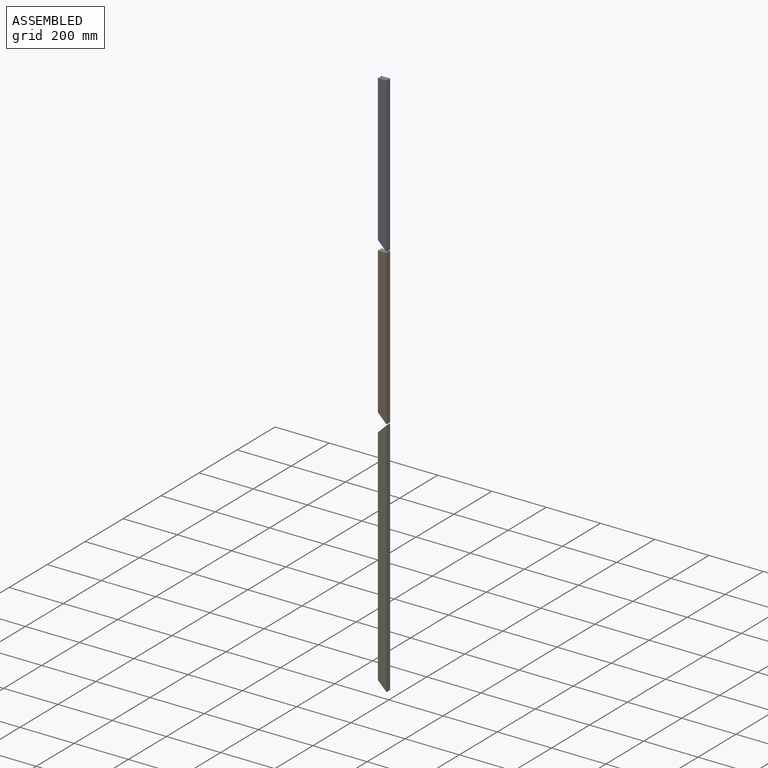
[diagram: assembled view]
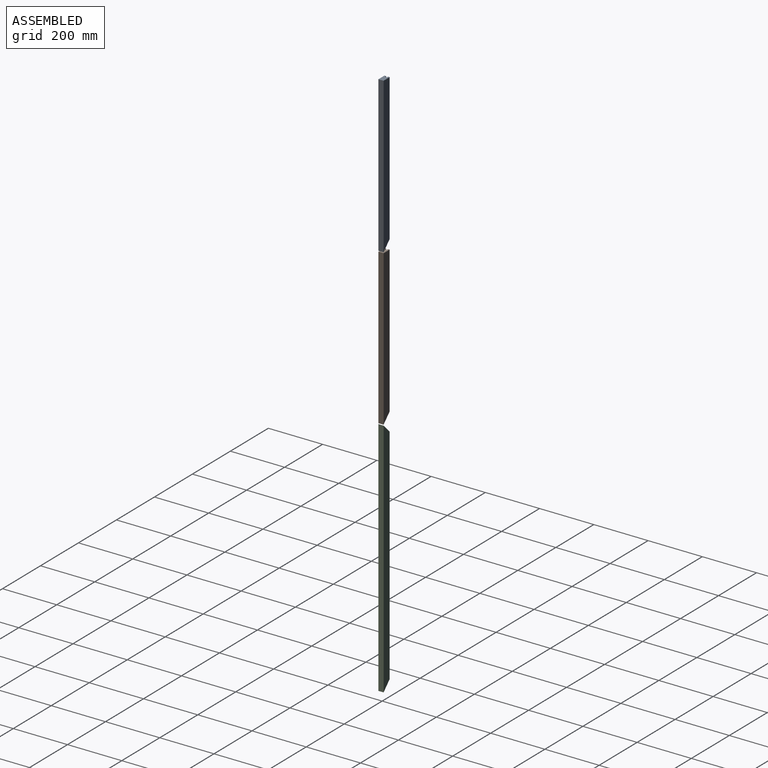
[diagram: assembled view, second angle]
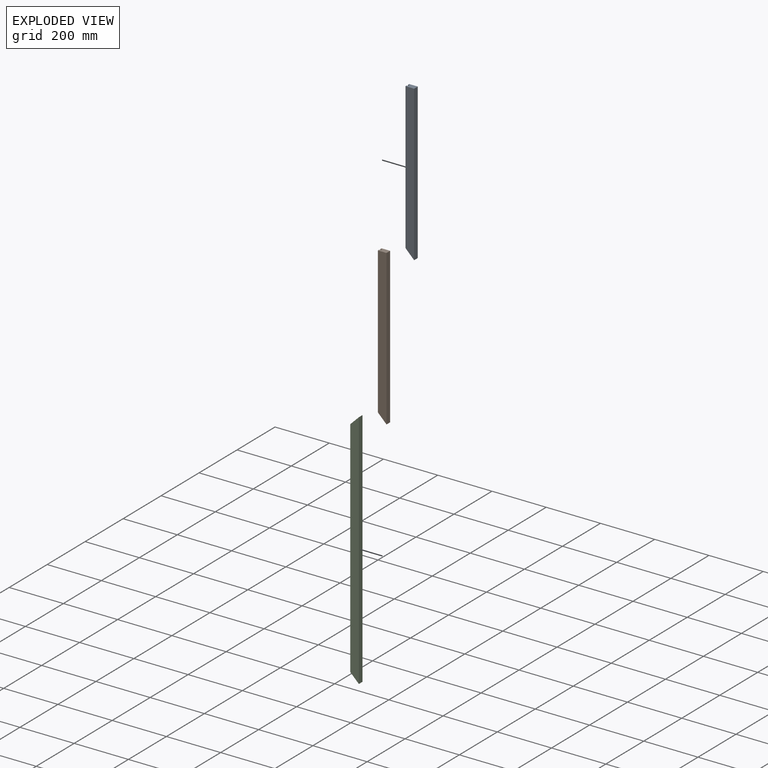
[diagram: exploded view]
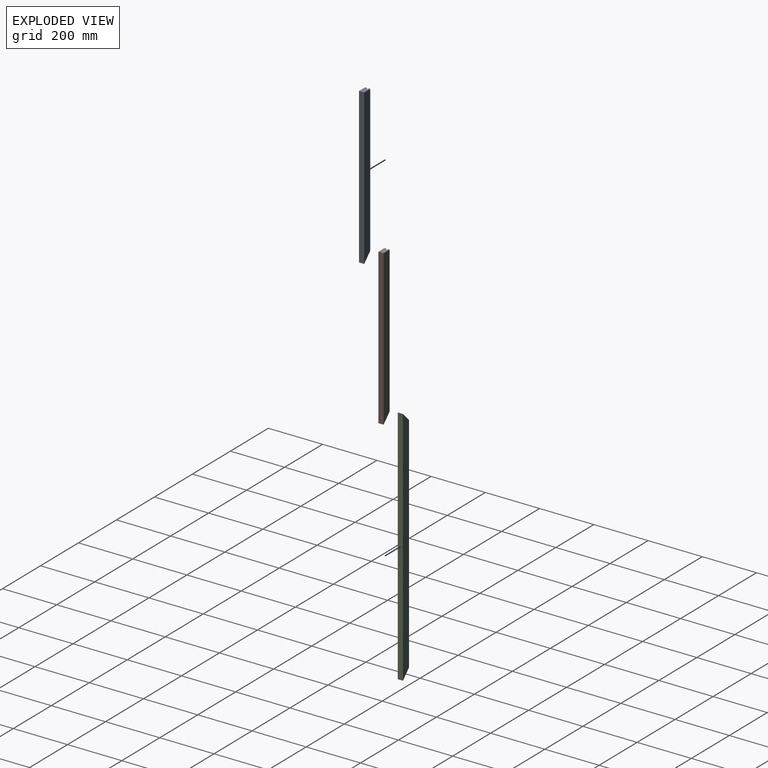
[diagram: exploded view, second angle]
ASSEMBLY  parts=3 mates=2
PART A: 10 faces, bbox 31.8x19.1x571.5 mm
  f0: plane 571.5x31.75mm, normal (0,-1,0), area 17641.1mm2, adj f1,f6,f7,f8
  f1: plane 571.5x19.05mm, normal (1,0,0), area 10887.1mm2, adj f0,f2,f6,f8
  f2: plane 571.5x31.75mm, normal (0,1,0), area 17641.1mm2, adj f1,f3,f6,f8
  f3: plane 539.75x6.35mm, normal (-1,0,0), area 3427.4mm2, adj f2,f4,f6,f8
  f4: plane 546.1x6.35mm, normal (0,-1,0), area 3447.6mm2, adj f3,f5,f6,f8
  f5: plane 546.1x6.35mm, normal (-1,0,0), area 3467.7mm2, adj f4,f6,f8,f9
  f6: plane 31.75x19.05mm, normal (0,0,1), area 564.5mm2, adj f0,f1,f2,f3,f4,f5,f7,f9
  f7: plane 539.75x6.35mm, normal (-1,0,0), area 3427.4mm2, adj f0,f6,f8,f9
  f8: plane 31.75x31.75mm, normal (-0.71,0,-0.71), area 798.3mm2, adj f0,f1,f2,f3,f4,f5,f7,f9
  f9: plane 546.1x6.35mm, normal (0,1,0), area 3447.6mm2, adj f5,f6,f7,f8
PART B: same geometry as A
PART C: 10 faces, bbox 31.8x19.1x889 mm
  f0: plane 825.5x6.35mm, normal (-1,0,0), area 5241.9mm2, adj f1,f6,f7,f8
  f1: plane 889x31.75mm, normal (0,-1,0), area 27217.7mm2, adj f0,f2,f6,f8
  f2: plane 889x19.05mm, normal (1,0,0), area 16935.5mm2, adj f1,f3,f6,f8
  f3: plane 889x31.75mm, normal (0,1,0), area 27217.7mm2, adj f2,f4,f6,f8
  f4: plane 825.5x6.35mm, normal (-1,0,0), area 5241.9mm2, adj f3,f5,f6,f8
  f5: plane 838.2x6.35mm, normal (0,-1,0), area 5282.2mm2, adj f4,f6,f8,f9
  f6: plane 31.75x31.75mm, normal (-0.71,0,0.71), area 798.3mm2, adj f0,f1,f2,f3,f4,f5,f7,f9
  f7: plane 838.2x6.35mm, normal (0,1,0), area 5282.2mm2, adj f0,f6,f8,f9
  f8: plane 31.75x31.75mm, normal (-0.71,0,-0.71), area 798.3mm2, adj f0,f1,f2,f3,f4,f5,f7,f9
  f9: plane 838.2x6.35mm, normal (-1,0,0), area 5322.6mm2, adj f5,f6,f7,f8
PLACE A t=(-31,5.83,1029.91)mm
PLACE B t=(-31,5.83,455.24)mm
PLACE C t=(-31,5.83,-436.94)mm fixed
MATE fastened B.f1 <-> A.f1  axis (1,0,0) through (0.75,5.83,1026.74)mm
MATE fastened C.f2 <-> B.f1  axis (1,0,0) through (0.75,5.83,452.06)mm
